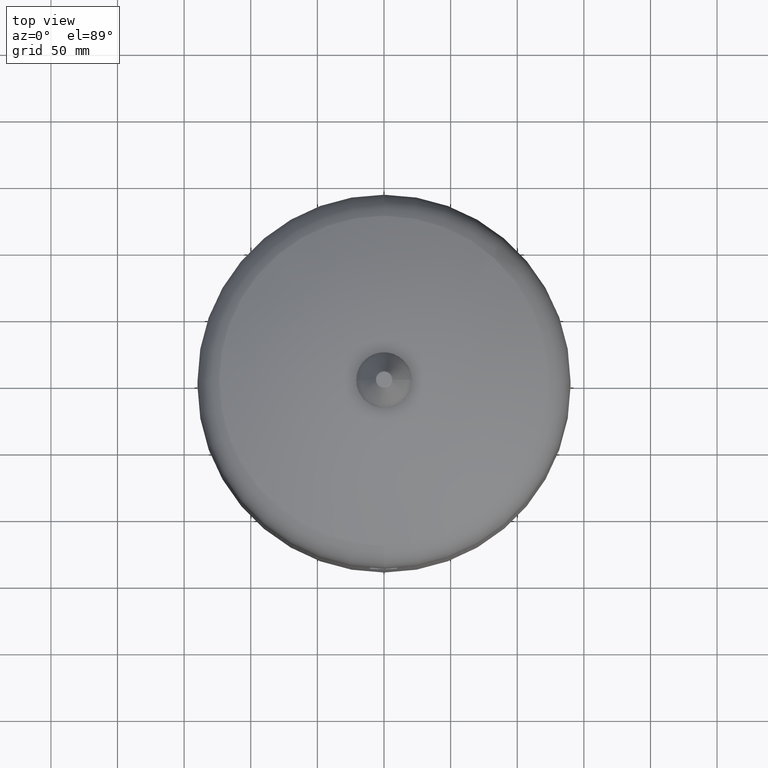
[diagram: clean part render]
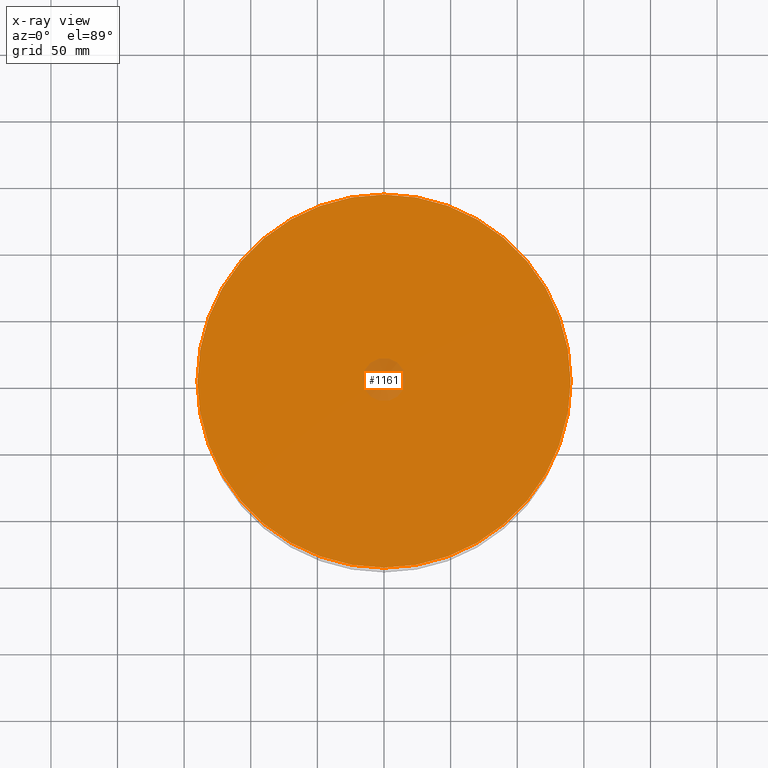
[diagram: x-ray — body ghosted, one internal face saturated and labeled with its STEP entity id]
A machine part, top view, then the same camera in x-ray: the body is ghosted and one INTERNAL B-rep face — a face not visible from any outside direction — is saturated and labeled: STEP entity #1161.
In plain terms, the highlighted planar face has unit normal (0, 0, 1).
Its self-contained STEP definition (entity closure, byte-faithful):
#951=CARTESIAN_POINT('',(140.0,0.0,299.0));
#952=VERTEX_POINT('',#951);
#961=CARTESIAN_POINT('',(-140.0,-1.714449E-014,299.0));
#962=VERTEX_POINT('',#961);
#963=CARTESIAN_POINT('',(0.0,0.0,299.0));
#964=DIRECTION('',(0.0,0.0,1.0));
#965=DIRECTION('',(1.0,0.0,0.0));
#966=AXIS2_PLACEMENT_3D('',#963,#964,#965);
#967=CIRCLE('',#966,140.0);
#968=EDGE_CURVE('',#962,#952,#967,.T.);
#1142=CARTESIAN_POINT('',(0.0,0.0,299.0));
#1143=DIRECTION('',(0.0,0.0,1.0));
#1144=DIRECTION('',(1.0,0.0,0.0));
#1145=AXIS2_PLACEMENT_3D('',#1142,#1143,#1144);
#1146=CIRCLE('',#1145,140.0);
#1147=EDGE_CURVE('',#952,#962,#1146,.T.);
#1152=CARTESIAN_POINT('',(70.0,0.0,299.0));
#1153=DIRECTION('',(0.0,0.0,1.0));
#1154=DIRECTION('',(1.0,0.0,0.0));
#1155=AXIS2_PLACEMENT_3D('',#1152,#1153,#1154);
#1156=PLANE('',#1155);
#1157=ORIENTED_EDGE('',*,*,#1147,.T.);
#1158=ORIENTED_EDGE('',*,*,#968,.T.);
#1159=EDGE_LOOP('',(#1157,#1158));
#1160=FACE_OUTER_BOUND('',#1159,.T.);
#1161=ADVANCED_FACE('',(#1160),#1156,.T.);